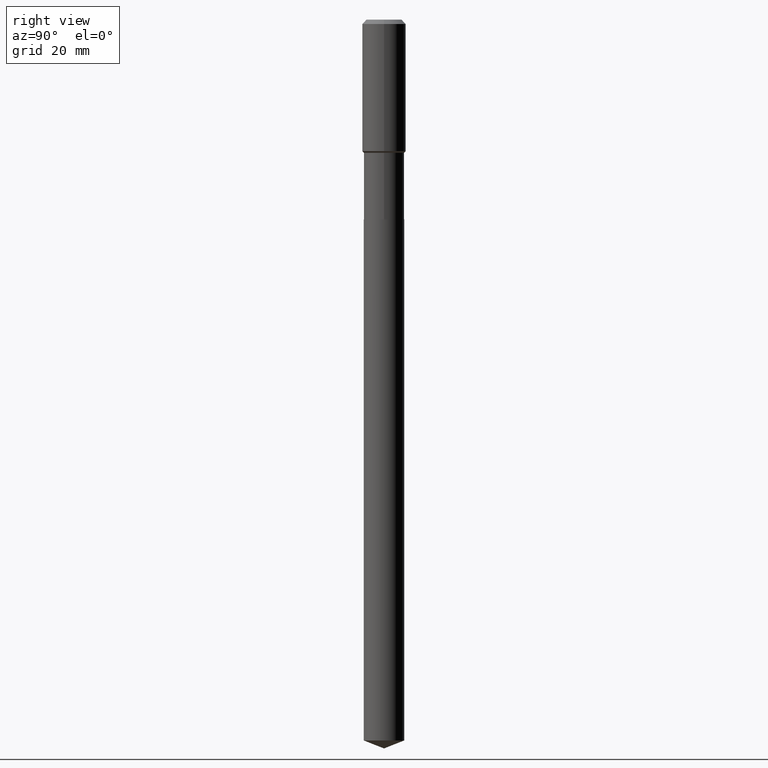
[diagram: clean part render]
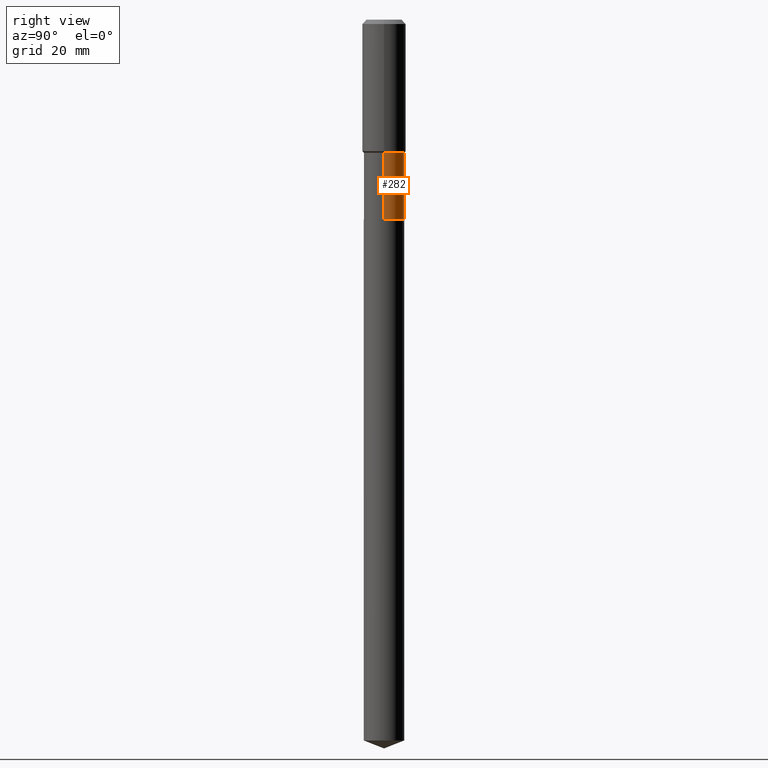
[diagram: same view with one face highlighted and labeled with its STEP entity id]
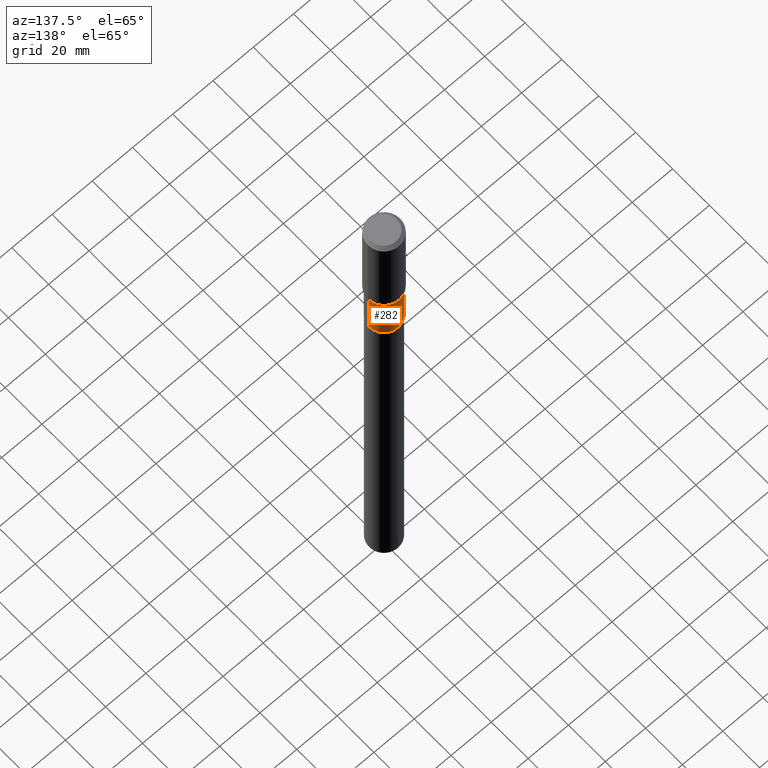
[diagram: same view with one face highlighted and labeled with its STEP entity id]
A machine part, right view. The second image highlights one B-rep face of the part: STEP entity #282.
A second angle (auxiliary view) of the same face is appended — the face is thin or edge-on in the first view.
In plain terms, the highlighted cylindrical surface (edge-blend (fillet) strip) has radius 7.4003 mm, axis along (-0, 0, 1).
Its self-contained STEP definition (entity closure, byte-faithful):
#18 = EDGE_CURVE ( 'NONE', #295, #184, #487, .T. ) ;
#41 = EDGE_LOOP ( 'NONE', ( #49, #154, #95, #223 ) ) ;
#49 = ORIENTED_EDGE ( 'NONE', *, *, #393, .T. ) ;
#76 = DIRECTION ( 'NONE',  ( -2.445468806185136597E-29, 3.491481338843145583E-15, 1.000000000000000000 ) ) ;
#95 = ORIENTED_EDGE ( 'NONE', *, *, #433, .F. ) ;
#97 = FACE_OUTER_BOUND ( 'NONE', #41, .T. ) ;
#103 = AXIS2_PLACEMENT_3D ( 'NONE', #354, #131, #268 ) ;
#107 = CARTESIAN_POINT ( 'NONE',  ( -0.2913499999999999424, 2.070166260637051482E-15, -1.433131738545766651E-29 ) ) ;
#127 = AXIS2_PLACEMENT_3D ( 'NONE', #371, #76, #158 ) ;
#131 = DIRECTION ( 'NONE',  ( -2.445468806185136597E-29, 3.491481338843145583E-15, 1.000000000000000000 ) ) ;
#135 = DIRECTION ( 'NONE',  ( 1.000000000000000000, -6.982962677686265922E-15, 4.876176775795936353E-29 ) ) ;
#154 = ORIENTED_EDGE ( 'NONE', *, *, #18, .T. ) ;
#158 = DIRECTION ( 'NONE',  ( 1.000000000000000000, -6.982962677686267499E-15, 0.000000000000000000 ) ) ;
#184 = VERTEX_POINT ( 'NONE', #202 ) ;
#190 = CIRCLE ( 'NONE', #103, 0.2913499999999998868 ) ;
#202 = CARTESIAN_POINT ( 'NONE',  ( -0.2913499999999998868, -6.313404156126164850E-15, -1.920599999999999197 ) ) ;
#223 = ORIENTED_EDGE ( 'NONE', *, *, #327, .F. ) ;
#268 = DIRECTION ( 'NONE',  ( 1.000000000000000000, -6.982962677686267499E-15, 0.000000000000000000 ) ) ;
#274 = VERTEX_POINT ( 'NONE', #473 ) ;
#282 = ADVANCED_FACE ( 'NONE', ( #97 ), #315, .T. ) ;
#287 = LINE ( 'NONE', #360, #369 ) ;
#295 = VERTEX_POINT ( 'NONE', #317 ) ;
#299 = VERTEX_POINT ( 'NONE', #322 ) ;
#315 = CYLINDRICAL_SURFACE ( 'NONE', #442, 0.2913499999999999424 ) ;
#317 = CARTESIAN_POINT ( 'NONE',  ( -0.2913499999999999979, -6.313404156126164061E-15, -2.881699999999999040 ) ) ;
#322 = CARTESIAN_POINT ( 'NONE',  ( 0.2913499999999999979, -1.209588795028818409E-14, -2.881699999999999040 ) ) ;
#327 = EDGE_CURVE ( 'NONE', #299, #274, #287, .T. ) ;
#354 = CARTESIAN_POINT ( 'NONE',  ( 4.696767389159171856E-29, -6.705739059382142988E-15, -1.920599999999999197 ) ) ;
#355 = DIRECTION ( 'NONE',  ( -2.445468806185136597E-29, 3.491481338843145583E-15, 1.000000000000000000 ) ) ;
#357 = VECTOR ( 'NONE', #375, 39.37007874015748143 ) ;
#358 = DIRECTION ( 'NONE',  ( -2.445468806185136877E-29, 3.491481338843145188E-15, 1.000000000000000000 ) ) ;
#360 = CARTESIAN_POINT ( 'NONE',  ( 0.2913499999999999424, -2.034486176143893229E-15, 1.420674103628145772E-29 ) ) ;
#369 = VECTOR ( 'NONE', #358, 39.37007874015748143 ) ;
#371 = CARTESIAN_POINT ( 'NONE',  ( 7.047107458783706099E-29, -1.006140177414428889E-14, -2.881699999999999040 ) ) ;
#375 = DIRECTION ( 'NONE',  ( -2.445468806185136877E-29, 3.491481338843145188E-15, 1.000000000000000000 ) ) ;
#387 = CIRCLE ( 'NONE', #127, 0.2913499999999999979 ) ;
#393 = EDGE_CURVE ( 'NONE', #299, #295, #387, .T. ) ;
#433 = EDGE_CURVE ( 'NONE', #274, #184, #190, .T. ) ;
#442 = AXIS2_PLACEMENT_3D ( 'NONE', #468, #355, #135 ) ;
#468 = CARTESIAN_POINT ( 'NONE',  ( 0.000000000000000000, 0.000000000000000000, 0.000000000000000000 ) ) ;
#473 = CARTESIAN_POINT ( 'NONE',  ( 0.2913499999999998868, -8.740225235526036611E-15, -1.920599999999999197 ) ) ;
#487 = LINE ( 'NONE', #107, #357 ) ;